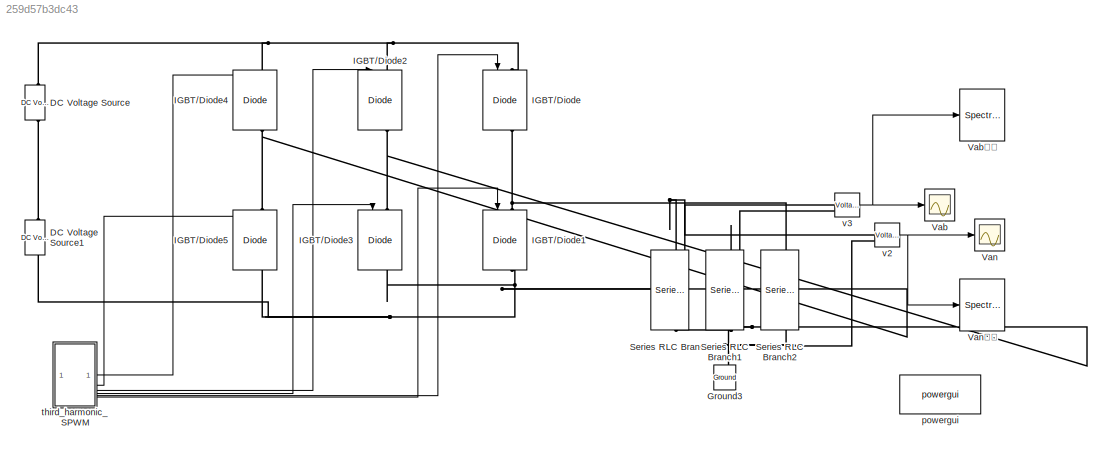
MODEL slx_259d57b3dc43
KIND model
CONFIG AbsTol = auto
CONFIG EnableMultiTasking = off
CONFIG FixedStep = auto
CONFIG MaxStep = auto
CONFIG MinStep = auto
CONFIG RelTol = 1e-3
CONFIG SampleTimeConstraint = Unconstrained
CONFIG SolverName = VariableStepAuto
CONFIG StartTime = 0.0
CONFIG StopTime = 0.5
BLOCK [Reference] DC Voltage Source  REF=spsDCVoltageSourceLib/DC Voltage Source
  LibrarySourceBlock = sps_lib/Sources/DC Voltage Source
  SourceBlock = spsDCVoltageSourceLib/DC Voltage Source
  SourceType = DC Voltage Source
BLOCK [Reference] DC Voltage Source1  REF=spsDCVoltageSourceLib/DC Voltage Source
  LibrarySourceBlock = sps_lib/Sources/DC Voltage Source
  SourceBlock = spsDCVoltageSourceLib/DC Voltage Source
  SourceType = DC Voltage Source
BLOCK [Reference] Ground3  REF=spsGroundLib/Ground
  LibrarySourceBlock = sps_lib/Utilities/Ground
  NameLocation = right
  SourceBlock = spsGroundLib/Ground
  SourceType = Ground
BLOCK [Reference] IGBT//Diode  REF=spsIGBTDiodeLib/IGBT//Diode
  LibrarySourceBlock = sps_lib/Power Electronics/IGBT//Diode
  NameLocation = right
  SourceBlock = spsIGBTDiodeLib/IGBT//Diode
  SourceType = IGBT/Diode
BLOCK [Reference] IGBT//Diode1  REF=spsIGBTDiodeLib/IGBT//Diode
  LibrarySourceBlock = sps_lib/Power Electronics/IGBT//Diode
  NameLocation = right
  SourceBlock = spsIGBTDiodeLib/IGBT//Diode
  SourceType = IGBT/Diode
BLOCK [Reference] IGBT//Diode2  REF=spsIGBTDiodeLib/IGBT//Diode
  LibrarySourceBlock = sps_lib/Power Electronics/IGBT//Diode
  NameLocation = right
  SourceBlock = spsIGBTDiodeLib/IGBT//Diode
  SourceType = IGBT/Diode
BLOCK [Reference] IGBT//Diode3  REF=spsIGBTDiodeLib/IGBT//Diode
  LibrarySourceBlock = sps_lib/Power Electronics/IGBT//Diode
  NameLocation = right
  SourceBlock = spsIGBTDiodeLib/IGBT//Diode
  SourceType = IGBT/Diode
BLOCK [Reference] IGBT//Diode4  REF=spsIGBTDiodeLib/IGBT//Diode
  LibrarySourceBlock = sps_lib/Power Electronics/IGBT//Diode
  NameLocation = right
  SourceBlock = spsIGBTDiodeLib/IGBT//Diode
  SourceType = IGBT/Diode
BLOCK [Reference] IGBT//Diode5  REF=spsIGBTDiodeLib/IGBT//Diode
  LibrarySourceBlock = sps_lib/Power Electronics/IGBT//Diode
  NameLocation = right
  SourceBlock = spsIGBTDiodeLib/IGBT//Diode
  SourceType = IGBT/Diode
BLOCK [Reference] Series RLC Branch  REF=spsSeriesRLCBranchLib/Series RLC Branch
  LibrarySourceBlock = sps_lib/Passives/Series RLC Branch
  NameLocation = left
  SourceBlock = spsSeriesRLCBranchLib/Series RLC Branch
  SourceType = Series RLC Branch
BLOCK [Reference] Series RLC Branch1  REF=spsSeriesRLCBranchLib/Series RLC Branch
  LibrarySourceBlock = sps_lib/Passives/Series RLC Branch
  NameLocation = left
  SourceBlock = spsSeriesRLCBranchLib/Series RLC Branch
  SourceType = Series RLC Branch
BLOCK [Reference] Series RLC Branch2  REF=spsSeriesRLCBranchLib/Series RLC Branch
  LibrarySourceBlock = sps_lib/Passives/Series RLC Branch
  NameLocation = left
  SourceBlock = spsSeriesRLCBranchLib/Series RLC Branch
  SourceType = Series RLC Branch
BLOCK [Scope] Vab
  Floating = off
  NumInputPorts = 1
  ScopeSpecificationString = Simulink.scopes.TimeScopeBlockCfg('CurrentConfiguration', extmgr.ConfigurationSet(extmgr.Configuration('Core','General UI',true),extmgr.Configuration('Core','Source UI',true),extmgr.Configuration('Sources','WiredSimulink',true,'DataLoggingVariableName','ScopeData3','DataLoggingSaveFormat','StructureWithTime'),extmgr.Configuration('Visuals','Time Domain',true,'SerializedDisplays',{struct('MinYLimRe...<+1434ch>
BLOCK [SpectrumAnalyzer] Vab頻譜
  ScopeSpecificationString = spbscopes.SpectrumAnalyzerBlockCfg('CurrentConfiguration', extmgr.ConfigurationSet(extmgr.Configuration('Core','General UI',true,'FigureColor',[1 1 1]),extmgr.Configuration('Core','Source UI',true),extmgr.Configuration('Sources','WiredSimulink',true),extmgr.Configuration('Visuals','Spectrum',true,'AxesProperties',struct('Color',{[1 1 1],[1 1 1]},'XColor',{[0 0 0],[0 0 0]},'YColor',{[0 0 0],[0 0 0]...<+1899ch>
BLOCK [Scope] Van
  Floating = off
  NumInputPorts = 1
  ScopeSpecificationString = Simulink.scopes.TimeScopeBlockCfg('CurrentConfiguration', extmgr.ConfigurationSet(extmgr.Configuration('Core','General UI',true),extmgr.Configuration('Core','Source UI',true),extmgr.Configuration('Sources','WiredSimulink',true,'DataLoggingVariableName','ScopeData2','DataLoggingSaveFormat','StructureWithTime'),extmgr.Configuration('Visuals','Time Domain',true,'SerializedDisplays',{struct('MinYLimRe...<+1463ch>
BLOCK [SpectrumAnalyzer] Van頻譜
  ScopeSpecificationString = spbscopes.SpectrumAnalyzerBlockCfg('CurrentConfiguration', extmgr.ConfigurationSet(extmgr.Configuration('Core','General UI',true,'FigureColor',[1 1 1]),extmgr.Configuration('Core','Source UI',true),extmgr.Configuration('Sources','WiredSimulink',true),extmgr.Configuration('Visuals','Spectrum',true,'AxesProperties',struct('Color',{[1 1 1],[1 1 1]},'XColor',{[0 0 0],[0 0 0]},'YColor',{[0 0 0],[0 0 0]...<+1899ch>
BLOCK [Reference] powergui  REF=spspowerguiLib/powergui
  Priority = 1
  SourceBlock = spspowerguiLib/powergui
  SourceType = PSB option menu block
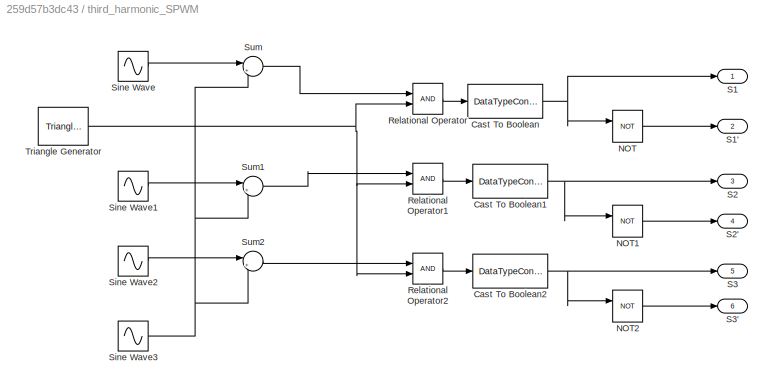
BLOCK [SubSystem] third_harmonic_SPWM
BLOCK [DataTypeConversion] third_harmonic_SPWM/Cast To Boolean
  OutDataTypeStr = boolean
  RndMeth = Floor
  SaturateOnIntegerOverflow = off
BLOCK [DataTypeConversion] third_harmonic_SPWM/Cast To Boolean1
  OutDataTypeStr = boolean
  RndMeth = Floor
  SaturateOnIntegerOverflow = off
BLOCK [DataTypeConversion] third_harmonic_SPWM/Cast To Boolean2
  OutDataTypeStr = boolean
  RndMeth = Floor
  SaturateOnIntegerOverflow = off
BLOCK [Logic] third_harmonic_SPWM/NOT
  AllPortsSameDT = off
  IconShape = distinctive
  Operator = NOT
  OutDataTypeStr = boolean
BLOCK [Logic] third_harmonic_SPWM/NOT1
  AllPortsSameDT = off
  IconShape = distinctive
  Operator = NOT
  OutDataTypeStr = boolean
BLOCK [Logic] third_harmonic_SPWM/NOT2
  AllPortsSameDT = off
  IconShape = distinctive
  Operator = NOT
  OutDataTypeStr = boolean
BLOCK [RelationalOperator] third_harmonic_SPWM/Relational Operator
  InputSameDT = off
  OutDataTypeStr = boolean
  RndMeth = Simplest
BLOCK [RelationalOperator] third_harmonic_SPWM/Relational Operator1
  InputSameDT = off
  OutDataTypeStr = boolean
  RndMeth = Simplest
BLOCK [RelationalOperator] third_harmonic_SPWM/Relational Operator2
  InputSameDT = off
  OutDataTypeStr = boolean
  RndMeth = Simplest
BLOCK [Outport] third_harmonic_SPWM/S1
BLOCK [Outport] third_harmonic_SPWM/S1'
  Port = 2
BLOCK [Outport] third_harmonic_SPWM/S2
  Port = 3
BLOCK [Outport] third_harmonic_SPWM/S2'
  Port = 4
BLOCK [Outport] third_harmonic_SPWM/S3
  Port = 5
BLOCK [Outport] third_harmonic_SPWM/S3'
  Port = 6
BLOCK [Sin] third_harmonic_SPWM/Sine Wave
  Amplitude = 1/sin(pi/3)
  Frequency = 2*pi*50
  SampleTime = 0
BLOCK [Sin] third_harmonic_SPWM/Sine Wave1
  Amplitude = 1/sin(pi/3)
  Frequency = 2*pi*50
  Phase = -2*pi/3
  SampleTime = 0
BLOCK [Sin] third_harmonic_SPWM/Sine Wave2
  Amplitude = 1/sin(pi/3)
  Frequency = 2*pi*50
  Phase = 2*pi/3
  SampleTime = 0
BLOCK [Sin] third_harmonic_SPWM/Sine Wave3
  Amplitude = 1/6*(1/sin(pi/3))
  Frequency = 3*2*pi*50
  SampleTime = 0
BLOCK [Sum] third_harmonic_SPWM/Sum
  Inputs = |++
BLOCK [Sum] third_harmonic_SPWM/Sum1
  Inputs = |++
BLOCK [Sum] third_harmonic_SPWM/Sum2
  Inputs = |++
BLOCK [Reference] third_harmonic_SPWM/Triangle Generator  REF=spsTriangleGeneratorLib/Triangle
Generator
  LibrarySourceBlock = sps_lib/Sources/Signal Generator Sources/Triangle\nGenerator
  SourceBlock = spsTriangleGeneratorLib/Triangle\nGenerator
  SourceType = Triangle Generator
BLOCK [Reference] v2  REF=spsVoltageMeasurementLib/Voltage Measurement
  LibrarySourceBlock = sps_lib/Sensors and Measurements/Voltage Measurement
  SourceBlock = spsVoltageMeasurementLib/Voltage Measurement
  SourceType = Voltage Measurement
  UserDataPersistent = on
BLOCK [Reference] v3  REF=spsVoltageMeasurementLib/Voltage Measurement
  LibrarySourceBlock = sps_lib/Sensors and Measurements/Voltage Measurement
  SourceBlock = spsVoltageMeasurementLib/Voltage Measurement
  SourceType = Voltage Measurement
  UserDataPersistent = on
NET third_harmonic_SPWM/Cast To Boolean1:1 -> third_harmonic_SPWM/NOT1:1, third_harmonic_SPWM/S2:1
NET third_harmonic_SPWM/Cast To Boolean2:1 -> third_harmonic_SPWM/NOT2:1, third_harmonic_SPWM/S3:1
NET third_harmonic_SPWM/Cast To Boolean:1 -> third_harmonic_SPWM/NOT:1, third_harmonic_SPWM/S1:1
LINE third_harmonic_SPWM/NOT1:1 -> third_harmonic_SPWM/S2':1
LINE third_harmonic_SPWM/NOT2:1 -> third_harmonic_SPWM/S3':1
LINE third_harmonic_SPWM/NOT:1 -> third_harmonic_SPWM/S1':1
LINE third_harmonic_SPWM/Relational Operator1:1 -> third_harmonic_SPWM/Cast To Boolean1:1
LINE third_harmonic_SPWM/Relational Operator2:1 -> third_harmonic_SPWM/Cast To Boolean2:1
LINE third_harmonic_SPWM/Relational Operator:1 -> third_harmonic_SPWM/Cast To Boolean:1
LINE third_harmonic_SPWM/Sine Wave1:1 -> third_harmonic_SPWM/Sum1:1
LINE third_harmonic_SPWM/Sine Wave2:1 -> third_harmonic_SPWM/Sum2:1
NET third_harmonic_SPWM/Sine Wave3:1 -> third_harmonic_SPWM/Sum1:2, third_harmonic_SPWM/Sum2:2, third_harmonic_SPWM/Sum:2
LINE third_harmonic_SPWM/Sine Wave:1 -> third_harmonic_SPWM/Sum:1
LINE third_harmonic_SPWM/Sum1:1 -> third_harmonic_SPWM/Relational Operator1:1
LINE third_harmonic_SPWM/Sum2:1 -> third_harmonic_SPWM/Relational Operator2:1
LINE third_harmonic_SPWM/Sum:1 -> third_harmonic_SPWM/Relational Operator:1
NET third_harmonic_SPWM/Triangle Generator:1 -> third_harmonic_SPWM/Relational Operator1:2, third_harmonic_SPWM/Relational Operator2:2, third_harmonic_SPWM/Relational Operator:2
LINE third_harmonic_SPWM:1 -> IGBT//Diode4:1
LINE third_harmonic_SPWM:2 -> IGBT//Diode5:1
LINE third_harmonic_SPWM:3 -> IGBT//Diode2:1
LINE third_harmonic_SPWM:4 -> IGBT//Diode3:1
LINE third_harmonic_SPWM:5 -> IGBT//Diode:1
LINE third_harmonic_SPWM:6 -> IGBT//Diode1:1
NET v2:1 -> Van:1, Van頻譜:1
NET v3:1 -> Vab:1, Vab頻譜:1
PNET net1: DC Voltage Source1:LConn1 -- IGBT//Diode1:RConn1 -- IGBT//Diode3:RConn1 -- IGBT//Diode5:RConn1
PLINE DC Voltage Source1:RConn1 -- DC Voltage Source:LConn1
PNET net2: DC Voltage Source:RConn1 -- IGBT//Diode2:LConn1 -- IGBT//Diode4:LConn1 -- IGBT//Diode:LConn1
PNET net3: Ground3:LConn1 -- Series RLC Branch1:RConn1 -- Series RLC Branch2:RConn1 -- Series RLC Branch:RConn1 -- v2:LConn2
PNET net4: IGBT//Diode1:LConn1 -- IGBT//Diode:RConn1 -- Series RLC Branch2:LConn1
PNET net5: IGBT//Diode2:RConn1 -- IGBT//Diode3:LConn1 -- Series RLC Branch1:LConn1 -- v3:LConn2
PNET net6: IGBT//Diode4:RConn1 -- IGBT//Diode5:LConn1 -- Series RLC Branch:LConn1 -- v2:LConn1 -- v3:LConn1
note: NET lines group one-source signal fan-out (src -> all destinations, sorted); 1:1 wires keep LINE; PNET lines group multi-terminal physical nets as a canonical sorted terminal list (undirected conserving connections); 2-terminal nets keep the pairwise PLINE form
